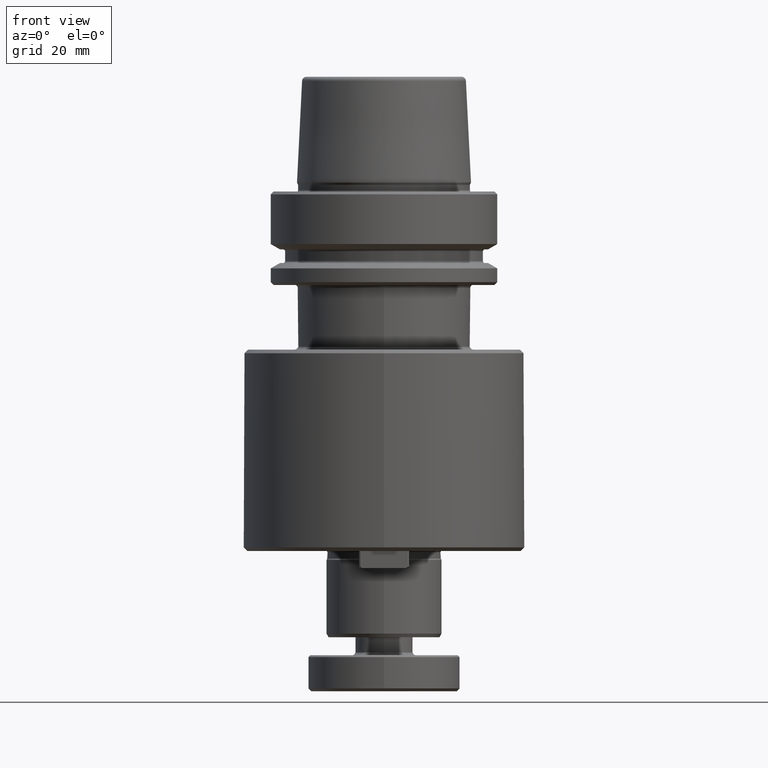
[diagram: clean part render]
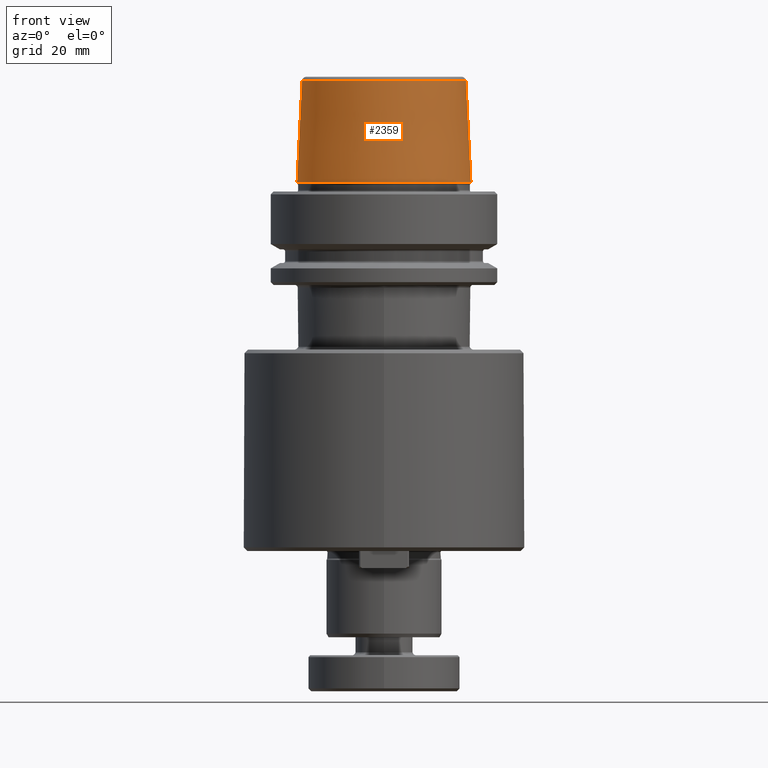
[diagram: same view with one face highlighted and labeled with its STEP entity id]
A machine part, front view. The second image highlights one B-rep face of the part: STEP entity #2359.
In plain terms, the highlighted conical surface has half-angle 2.868 deg.
Its self-contained STEP definition (entity closure, byte-faithful):
#13 = VECTOR ( 'NONE', #1323, 1000.000000000000000 ) ;
#74 = DIRECTION ( 'NONE',  ( 0.05003740818623113300, 6.127815177289752600E-018, -0.9987473443178732600 ) ) ;
#119 = EDGE_LOOP ( 'NONE', ( #3098, #1973, #2424, #153 ) ) ;
#153 = ORIENTED_EDGE ( 'NONE', *, *, #852, .T. ) ;
#330 = CARTESIAN_POINT ( 'NONE',  ( -22.77954767978208000, 0.0000000000000000000, 30.73657688124376000 ) ) ;
#523 = CONICAL_SURFACE ( 'NONE', #1333, 24.19533121340911200, 0.05005831187521716400 ) ;
#569 = CIRCLE ( 'NONE', #981, 24.19533121340911200 ) ;
#625 = VERTEX_POINT ( 'NONE', #3337 ) ;
#834 = EDGE_CURVE ( 'NONE', #3004, #2899, #2697, .T. ) ;
#852 = EDGE_CURVE ( 'NONE', #625, #2899, #569, .T. ) ;
#880 = DIRECTION ( 'NONE',  ( -0.0000000000000000000, -0.0000000000000000000, 1.000000000000000000 ) ) ;
#897 = DIRECTION ( 'NONE',  ( -1.000000000000000000, 0.0000000000000000000, 0.0000000000000000000 ) ) ;
#970 = CIRCLE ( 'NONE', #1743, 22.77954767978208000 ) ;
#981 = AXIS2_PLACEMENT_3D ( 'NONE', #2476, #880, #2736 ) ;
#1323 = DIRECTION ( 'NONE',  ( -0.05003740818623113300, 0.0000000000000000000, -0.9987473443178732600 ) ) ;
#1333 = AXIS2_PLACEMENT_3D ( 'NONE', #1974, #2496, #897 ) ;
#1340 = DIRECTION ( 'NONE',  ( -0.0000000000000000000, -0.0000000000000000000, 1.000000000000000000 ) ) ;
#1569 = VERTEX_POINT ( 'NONE', #330 ) ;
#1646 = CARTESIAN_POINT ( 'NONE',  ( 24.19533121340911200, 0.0000000000000000000, 2.477518396914346600 ) ) ;
#1743 = AXIS2_PLACEMENT_3D ( 'NONE', #2929, #1340, #3180 ) ;
#1973 = ORIENTED_EDGE ( 'NONE', *, *, #2637, .F. ) ;
#1974 = CARTESIAN_POINT ( 'NONE',  ( 0.0000000000000000000, 0.0000000000000000000, 2.477518396914346600 ) ) ;
#2047 = FACE_OUTER_BOUND ( 'NONE', #119, .T. ) ;
#2089 = VECTOR ( 'NONE', #74, 1000.000000000000000 ) ;
#2315 = LINE ( 'NONE', #2918, #13 ) ;
#2359 = ADVANCED_FACE ( 'NONE', ( #2047 ), #523, .T. ) ;
#2424 = ORIENTED_EDGE ( 'NONE', *, *, #2722, .T. ) ;
#2476 = CARTESIAN_POINT ( 'NONE',  ( 0.0000000000000000000, 0.0000000000000000000, 2.477518396914346600 ) ) ;
#2496 = DIRECTION ( 'NONE',  ( 0.0000000000000000000, 0.0000000000000000000, -1.000000000000000000 ) ) ;
#2637 = EDGE_CURVE ( 'NONE', #1569, #3004, #970, .T. ) ;
#2697 = LINE ( 'NONE', #3237, #2089 ) ;
#2722 = EDGE_CURVE ( 'NONE', #1569, #625, #2315, .T. ) ;
#2736 = DIRECTION ( 'NONE',  ( 1.000000000000000000, 0.0000000000000000000, 0.0000000000000000000 ) ) ;
#2899 = VERTEX_POINT ( 'NONE', #1646 ) ;
#2918 = CARTESIAN_POINT ( 'NONE',  ( -24.19533121340911200, 0.0000000000000000000, 2.477518396914346600 ) ) ;
#2929 = CARTESIAN_POINT ( 'NONE',  ( 0.0000000000000000000, 0.0000000000000000000, 30.73657688124376000 ) ) ;
#3004 = VERTEX_POINT ( 'NONE', #3262 ) ;
#3098 = ORIENTED_EDGE ( 'NONE', *, *, #834, .F. ) ;
#3180 = DIRECTION ( 'NONE',  ( 1.000000000000000000, 0.0000000000000000000, 0.0000000000000000000 ) ) ;
#3237 = CARTESIAN_POINT ( 'NONE',  ( 24.19533121340911200, 2.963073492481151400E-015, 2.477518396914346600 ) ) ;
#3262 = CARTESIAN_POINT ( 'NONE',  ( 22.77954767978208000, 2.876381753844058100E-015, 30.73657688124376000 ) ) ;
#3337 = CARTESIAN_POINT ( 'NONE',  ( -24.19533121340911200, 2.963073492481151400E-015, 2.477518396914346600 ) ) ;